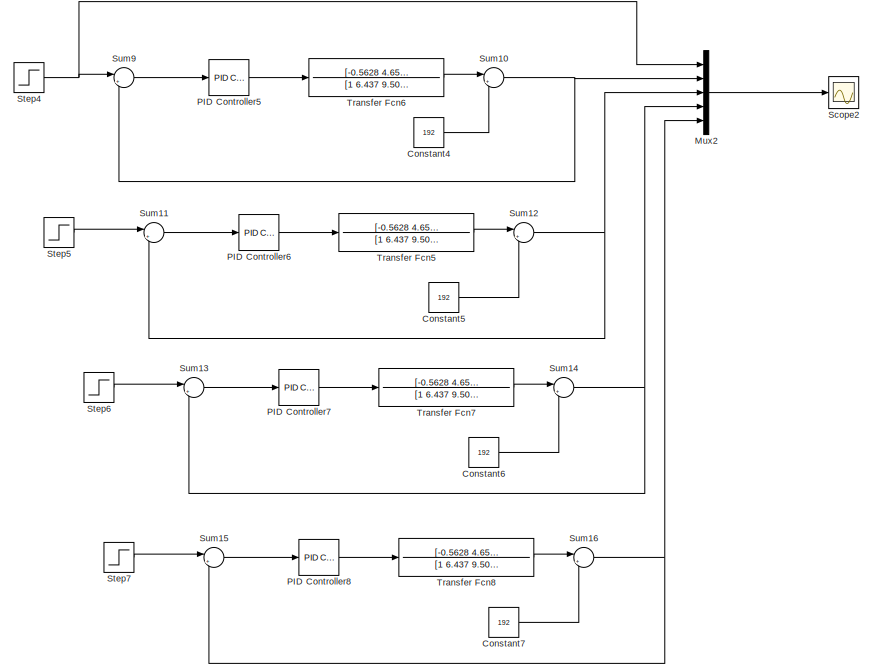
[diagram: root canvas - part 1/5, top center region]
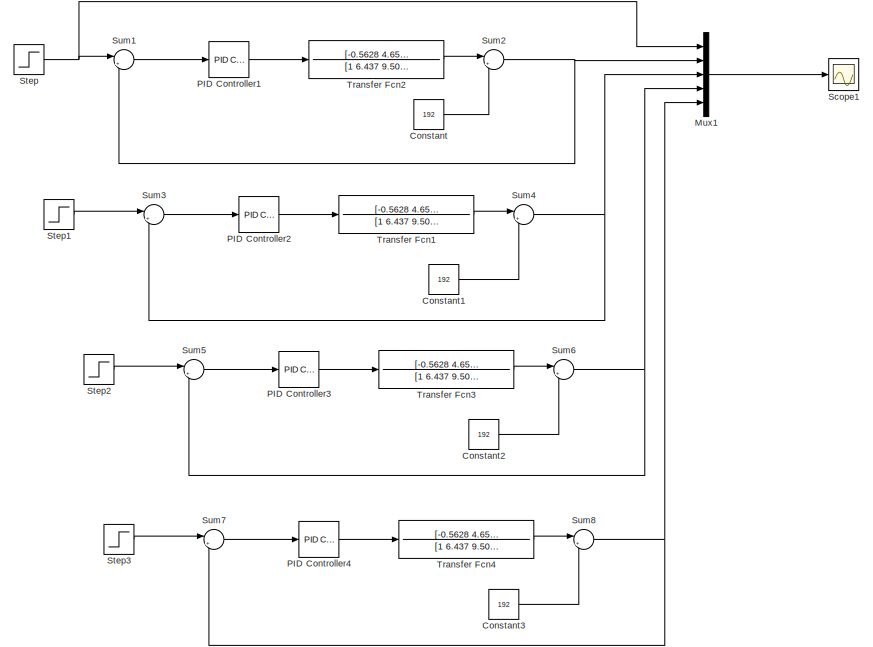
[diagram: root canvas - part 2/5, top left region]
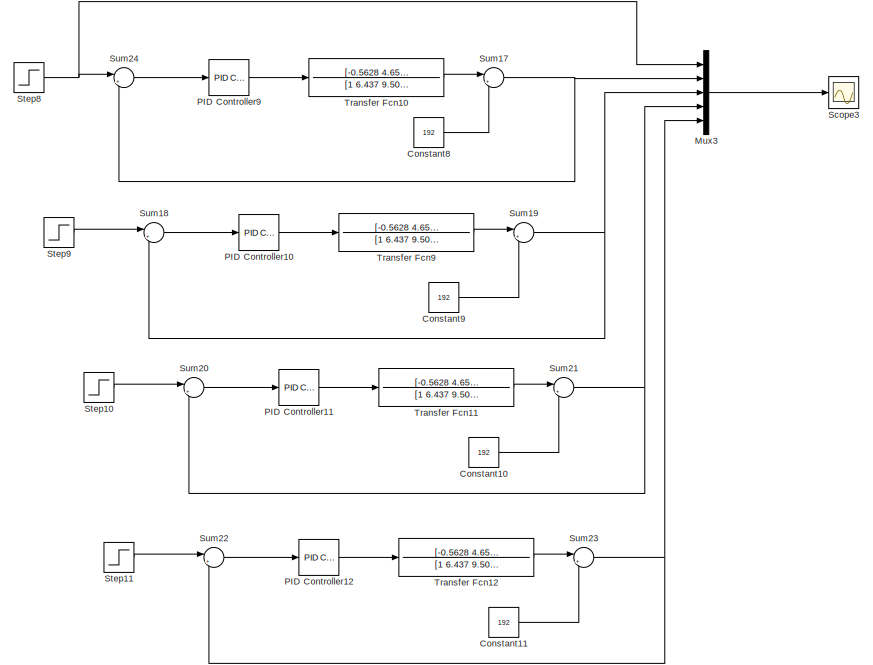
[diagram: root canvas - part 3/5, top right region]
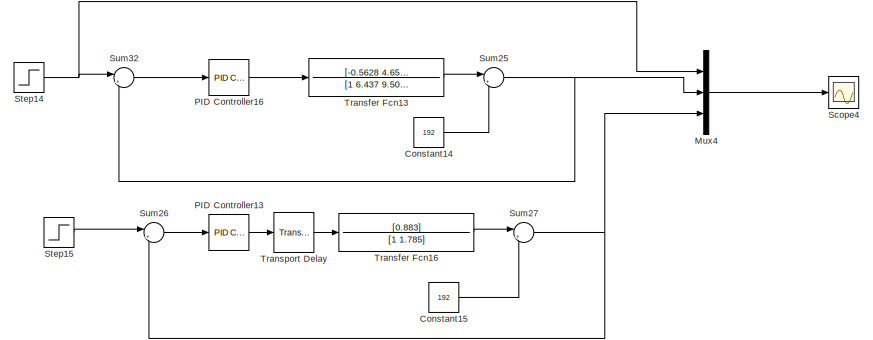
[diagram: root canvas - part 4/5, middle left region]
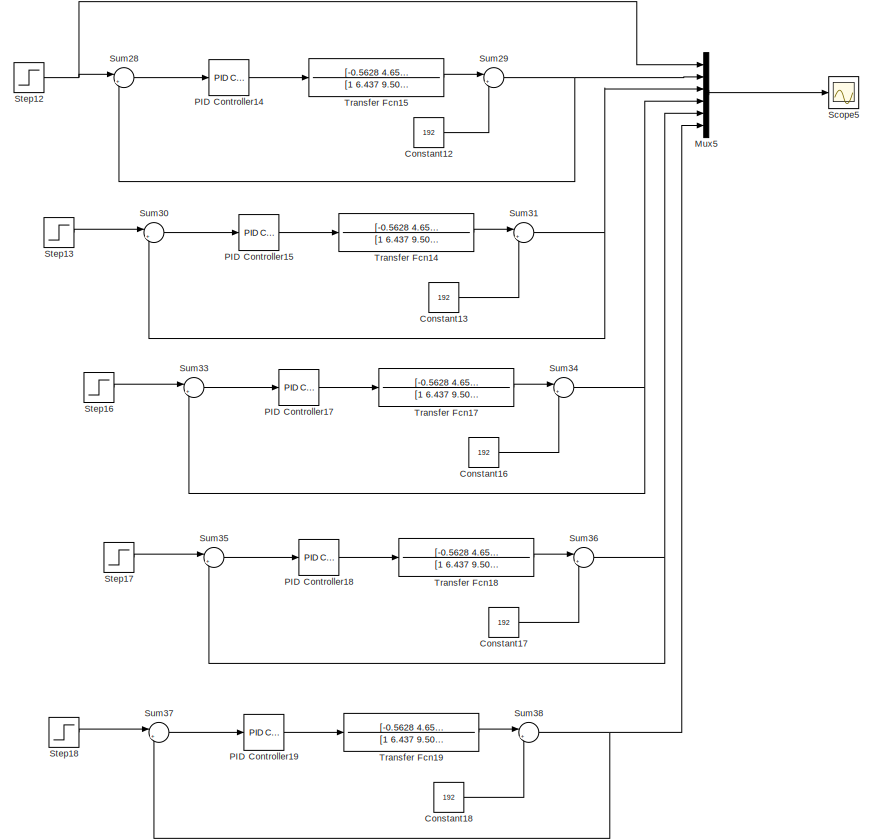
[diagram: root canvas - part 5/5, bottom center region]
MODEL slx_c8a90089624b
KIND model
CONFIG AbsTol = auto
CONFIG EnableMultiTasking = off
CONFIG FixedStep = auto
CONFIG MaxStep = auto
CONFIG MinStep = auto
CONFIG RelTol = 1e-3
CONFIG SampleTimeConstraint = Unconstrained
CONFIG Solver = VariableStepAuto
CONFIG SolverName = VariableStepAuto
CONFIG StartTime = 0.0
CONFIG StopTime = 10.0
BLOCK [Constant] Constant
  Value = 192
BLOCK [Constant] Constant1
  Value = 192
BLOCK [Constant] Constant10
  Value = 192
BLOCK [Constant] Constant11
  Value = 192
BLOCK [Constant] Constant12
  Value = 192
BLOCK [Constant] Constant13
  Value = 192
BLOCK [Constant] Constant14
  Value = 192
BLOCK [Constant] Constant15
  Value = 192
BLOCK [Constant] Constant16
  Value = 192
BLOCK [Constant] Constant17
  Value = 192
BLOCK [Constant] Constant18
  Value = 192
BLOCK [Constant] Constant2
  Value = 192
BLOCK [Constant] Constant3
  Value = 192
BLOCK [Constant] Constant4
  Value = 192
BLOCK [Constant] Constant5
  Value = 192
BLOCK [Constant] Constant6
  Value = 192
BLOCK [Constant] Constant7
  Value = 192
BLOCK [Constant] Constant8
  Value = 192
BLOCK [Constant] Constant9
  Value = 192
BLOCK [Mux] Mux1
  DisplayOption = bar
  Inputs = 5
  Ports = [5, 1]
BLOCK [Mux] Mux2
  DisplayOption = bar
  Inputs = 5
  Ports = [5, 1]
BLOCK [Mux] Mux3
  DisplayOption = bar
  Inputs = 5
  Ports = [5, 1]
BLOCK [Mux] Mux4
  DisplayOption = bar
  Inputs = 3
  Ports = [3, 1]
BLOCK [Mux] Mux5
  DisplayOption = bar
  Inputs = 6
  Ports = [6, 1]
BLOCK [Reference] PID Controller1  REF=simulink/Continuous/PID Controller
  Ports = [1, 1]
  SourceBlock = simulink/Continuous/PID Controller
  SourceProductBaseCode = SL
  SourceProductName = Simulink
  SourceType = PID 1dof
BLOCK [Reference] PID Controller10  REF=simulink/Continuous/PID Controller
  Ports = [1, 1]
  SourceBlock = simulink/Continuous/PID Controller
  SourceProductBaseCode = SL
  SourceProductName = Simulink
  SourceType = PID 1dof
BLOCK [Reference] PID Controller11  REF=simulink/Continuous/PID Controller
  Ports = [1, 1]
  SourceBlock = simulink/Continuous/PID Controller
  SourceProductBaseCode = SL
  SourceProductName = Simulink
  SourceType = PID 1dof
BLOCK [Reference] PID Controller12  REF=simulink/Continuous/PID Controller
  Ports = [1, 1]
  SourceBlock = simulink/Continuous/PID Controller
  SourceProductBaseCode = SL
  SourceProductName = Simulink
  SourceType = PID 1dof
BLOCK [Reference] PID Controller13  REF=simulink/Continuous/PID Controller
  Ports = [1, 1]
  SourceBlock = simulink/Continuous/PID Controller
  SourceProductBaseCode = SL
  SourceProductName = Simulink
  SourceType = PID 1dof
BLOCK [Reference] PID Controller14  REF=simulink/Continuous/PID Controller
  Ports = [1, 1]
  SourceBlock = simulink/Continuous/PID Controller
  SourceProductBaseCode = SL
  SourceProductName = Simulink
  SourceType = PID 1dof
BLOCK [Reference] PID Controller15  REF=simulink/Continuous/PID Controller
  Ports = [1, 1]
  SourceBlock = simulink/Continuous/PID Controller
  SourceProductBaseCode = SL
  SourceProductName = Simulink
  SourceType = PID 1dof
BLOCK [Reference] PID Controller16  REF=simulink/Continuous/PID Controller
  Ports = [1, 1]
  SourceBlock = simulink/Continuous/PID Controller
  SourceProductBaseCode = SL
  SourceProductName = Simulink
  SourceType = PID 1dof
BLOCK [Reference] PID Controller17  REF=simulink/Continuous/PID Controller
  Ports = [1, 1]
  SourceBlock = simulink/Continuous/PID Controller
  SourceProductBaseCode = SL
  SourceProductName = Simulink
  SourceType = PID 1dof
BLOCK [Reference] PID Controller18  REF=simulink/Continuous/PID Controller
  Ports = [1, 1]
  SourceBlock = simulink/Continuous/PID Controller
  SourceProductBaseCode = SL
  SourceProductName = Simulink
  SourceType = PID 1dof
BLOCK [Reference] PID Controller19  REF=simulink/Continuous/PID Controller
  Ports = [1, 1]
  SourceBlock = simulink/Continuous/PID Controller
  SourceProductBaseCode = SL
  SourceProductName = Simulink
  SourceType = PID 1dof
BLOCK [Reference] PID Controller2  REF=simulink/Continuous/PID Controller
  Ports = [1, 1]
  SourceBlock = simulink/Continuous/PID Controller
  SourceProductBaseCode = SL
  SourceProductName = Simulink
  SourceType = PID 1dof
BLOCK [Reference] PID Controller3  REF=simulink/Continuous/PID Controller
  Ports = [1, 1]
  SourceBlock = simulink/Continuous/PID Controller
  SourceProductBaseCode = SL
  SourceProductName = Simulink
  SourceType = PID 1dof
BLOCK [Reference] PID Controller4  REF=simulink/Continuous/PID Controller
  Ports = [1, 1]
  SourceBlock = simulink/Continuous/PID Controller
  SourceProductBaseCode = SL
  SourceProductName = Simulink
  SourceType = PID 1dof
BLOCK [Reference] PID Controller5  REF=simulink/Continuous/PID Controller
  Ports = [1, 1]
  SourceBlock = simulink/Continuous/PID Controller
  SourceProductBaseCode = SL
  SourceProductName = Simulink
  SourceType = PID 1dof
BLOCK [Reference] PID Controller6  REF=simulink/Continuous/PID Controller
  Ports = [1, 1]
  SourceBlock = simulink/Continuous/PID Controller
  SourceProductBaseCode = SL
  SourceProductName = Simulink
  SourceType = PID 1dof
BLOCK [Reference] PID Controller7  REF=simulink/Continuous/PID Controller
  Ports = [1, 1]
  SourceBlock = simulink/Continuous/PID Controller
  SourceProductBaseCode = SL
  SourceProductName = Simulink
  SourceType = PID 1dof
BLOCK [Reference] PID Controller8  REF=simulink/Continuous/PID Controller
  Ports = [1, 1]
  SourceBlock = simulink/Continuous/PID Controller
  SourceProductBaseCode = SL
  SourceProductName = Simulink
  SourceType = PID 1dof
BLOCK [Reference] PID Controller9  REF=simulink/Continuous/PID Controller
  Ports = [1, 1]
  SourceBlock = simulink/Continuous/PID Controller
  SourceProductBaseCode = SL
  SourceProductName = Simulink
  SourceType = PID 1dof
BLOCK [Scope] Scope1
  Floating = off
  NumInputPorts = 1
  Ports = [1]
  ScopeSpecificationString = Simulink.scopes.TimeScopeBlockCfg('CurrentConfiguration', extmgr.ConfigurationSet(extmgr.Configuration('Core','General UI',true),extmgr.Configuration('Core','Source UI',true),extmgr.Configuration('Sources','WiredSimulink',true,'DataLoggingVariableName','ScopeData1'),extmgr.Configuration('Visuals','Time Domain',true,'SerializedDisplays',{struct('MinYLimReal','181.96439','MaxYLimReal','233.81463','Y...<+1405ch>
BLOCK [Scope] Scope2
  Floating = off
  NumInputPorts = 1
  Ports = [1]
  ScopeSpecificationString = Simulink.scopes.TimeScopeBlockCfg('CurrentConfiguration', extmgr.ConfigurationSet(extmgr.Configuration('Core','General UI',true),extmgr.Configuration('Core','Source UI',true),extmgr.Configuration('Sources','WiredSimulink',true),extmgr.Configuration('Visuals','Time Domain',true,'SerializedDisplays',{struct('MinYLimReal','184.50574','MaxYLimReal','239.39338','YLabelReal','','MinYLimMag','184.50574',...<+1399ch>
BLOCK [Scope] Scope3
  Floating = off
  NumInputPorts = 1
  Ports = [1]
  ScopeSpecificationString = Simulink.scopes.TimeScopeBlockCfg('CurrentConfiguration', extmgr.ConfigurationSet(extmgr.Configuration('Core','General UI',true),extmgr.Configuration('Core','Source UI',true),extmgr.Configuration('Sources','WiredSimulink',true,'DataLoggingVariableName','ScopeData2'),extmgr.Configuration('Visuals','Time Domain',true,'SerializedDisplays',{struct('MinYLimReal','163.36665','MaxYLimReal','231.32104','Y...<+1439ch>
BLOCK [Scope] Scope4
  Floating = off
  NumInputPorts = 1
  Ports = [1]
  ScopeSpecificationString = Simulink.scopes.TimeScopeBlockCfg('CurrentConfiguration', extmgr.ConfigurationSet(extmgr.Configuration('Core','General UI',true),extmgr.Configuration('Core','Source UI',true),extmgr.Configuration('Sources','WiredSimulink',true,'DataLoggingVariableName','ScopeData3'),extmgr.Configuration('Visuals','Time Domain',true,'SerializedDisplays',{struct('MinYLimReal','185.69792','MaxYLimReal','228.25801','Y...<+1424ch>
BLOCK [Scope] Scope5
  Floating = off
  NumInputPorts = 1
  Ports = [1]
  ScopeSpecificationString = Simulink.scopes.TimeScopeBlockCfg('CurrentConfiguration', extmgr.ConfigurationSet(extmgr.Configuration('Core','General UI',true),extmgr.Configuration('Core','Source UI',true),extmgr.Configuration('Sources','WiredSimulink',true,'DataLoggingVariableName','ScopeData1'),extmgr.Configuration('Visuals','Time Domain',true,'SerializedDisplays',{struct('MinYLimReal','180.44486','MaxYLimReal','237.97089','Y...<+1419ch>
BLOCK [Step] Step
  After = 224
  Before = 192
  SampleTime = 0
BLOCK [Step] Step1
  After = 224
  Before = 192
  SampleTime = 0
BLOCK [Step] Step10
  After = 224
  Before = 192
  SampleTime = 0
BLOCK [Step] Step11
  After = 224
  Before = 192
  SampleTime = 0
BLOCK [Step] Step12
  After = 224
  Before = 192
  SampleTime = 0
BLOCK [Step] Step13
  After = 224
  Before = 192
  SampleTime = 0
BLOCK [Step] Step14
  After = 224
  Before = 192
  SampleTime = 0
BLOCK [Step] Step15
  After = 224
  Before = 192
  SampleTime = 0
BLOCK [Step] Step16
  After = 224
  Before = 192
  SampleTime = 0
BLOCK [Step] Step17
  After = 224
  Before = 192
  SampleTime = 0
BLOCK [Step] Step18
  After = 224
  Before = 192
  SampleTime = 0
BLOCK [Step] Step2
  After = 224
  Before = 192
  SampleTime = 0
BLOCK [Step] Step3
  After = 224
  Before = 192
  SampleTime = 0
BLOCK [Step] Step4
  After = 224
  Before = 192
  SampleTime = 0
BLOCK [Step] Step5
  After = 224
  Before = 192
  SampleTime = 0
BLOCK [Step] Step6
  After = 224
  Before = 192
  SampleTime = 0
BLOCK [Step] Step7
  After = 224
  Before = 192
  SampleTime = 0
BLOCK [Step] Step8
  After = 224
  Before = 192
  SampleTime = 0
BLOCK [Step] Step9
  After = 224
  Before = 192
  SampleTime = 0
BLOCK [Sum] Sum1
  IconShape = round
  InputSameDT = off
  Inputs = |+-
  OutDataTypeStr = Inherit: Inherit via internal rule
  Ports = [2, 1]
  SaturateOnIntegerOverflow = off
BLOCK [Sum] Sum10
  IconShape = round
  InputSameDT = off
  Inputs = |++
  OutDataTypeStr = Inherit: Inherit via internal rule
  Ports = [2, 1]
  SaturateOnIntegerOverflow = off
BLOCK [Sum] Sum11
  IconShape = round
  InputSameDT = off
  Inputs = |+-
  OutDataTypeStr = Inherit: Inherit via internal rule
  Ports = [2, 1]
  SaturateOnIntegerOverflow = off
BLOCK [Sum] Sum12
  IconShape = round
  InputSameDT = off
  Inputs = |++
  OutDataTypeStr = Inherit: Inherit via internal rule
  Ports = [2, 1]
  SaturateOnIntegerOverflow = off
BLOCK [Sum] Sum13
  IconShape = round
  InputSameDT = off
  Inputs = |+-
  OutDataTypeStr = Inherit: Inherit via internal rule
  Ports = [2, 1]
  SaturateOnIntegerOverflow = off
BLOCK [Sum] Sum14
  IconShape = round
  InputSameDT = off
  Inputs = |++
  OutDataTypeStr = Inherit: Inherit via internal rule
  Ports = [2, 1]
  SaturateOnIntegerOverflow = off
BLOCK [Sum] Sum15
  IconShape = round
  InputSameDT = off
  Inputs = |+-
  OutDataTypeStr = Inherit: Inherit via internal rule
  Ports = [2, 1]
  SaturateOnIntegerOverflow = off
BLOCK [Sum] Sum16
  IconShape = round
  InputSameDT = off
  Inputs = |++
  OutDataTypeStr = Inherit: Inherit via internal rule
  Ports = [2, 1]
  SaturateOnIntegerOverflow = off
BLOCK [Sum] Sum17
  IconShape = round
  InputSameDT = off
  Inputs = |++
  OutDataTypeStr = Inherit: Inherit via internal rule
  Ports = [2, 1]
  SaturateOnIntegerOverflow = off
BLOCK [Sum] Sum18
  IconShape = round
  InputSameDT = off
  Inputs = |+-
  OutDataTypeStr = Inherit: Inherit via internal rule
  Ports = [2, 1]
  SaturateOnIntegerOverflow = off
BLOCK [Sum] Sum19
  IconShape = round
  InputSameDT = off
  Inputs = |++
  OutDataTypeStr = Inherit: Inherit via internal rule
  Ports = [2, 1]
  SaturateOnIntegerOverflow = off
BLOCK [Sum] Sum2
  IconShape = round
  InputSameDT = off
  Inputs = |++
  OutDataTypeStr = Inherit: Inherit via internal rule
  Ports = [2, 1]
  SaturateOnIntegerOverflow = off
BLOCK [Sum] Sum20
  IconShape = round
  InputSameDT = off
  Inputs = |+-
  OutDataTypeStr = Inherit: Inherit via internal rule
  Ports = [2, 1]
  SaturateOnIntegerOverflow = off
BLOCK [Sum] Sum21
  IconShape = round
  InputSameDT = off
  Inputs = |++
  OutDataTypeStr = Inherit: Inherit via internal rule
  Ports = [2, 1]
  SaturateOnIntegerOverflow = off
BLOCK [Sum] Sum22
  IconShape = round
  InputSameDT = off
  Inputs = |+-
  OutDataTypeStr = Inherit: Inherit via internal rule
  Ports = [2, 1]
  SaturateOnIntegerOverflow = off
BLOCK [Sum] Sum23
  IconShape = round
  InputSameDT = off
  Inputs = |++
  OutDataTypeStr = Inherit: Inherit via internal rule
  Ports = [2, 1]
  SaturateOnIntegerOverflow = off
BLOCK [Sum] Sum24
  IconShape = round
  InputSameDT = off
  Inputs = |+-
  OutDataTypeStr = Inherit: Inherit via internal rule
  Ports = [2, 1]
  SaturateOnIntegerOverflow = off
BLOCK [Sum] Sum25
  IconShape = round
  InputSameDT = off
  Inputs = |++
  OutDataTypeStr = Inherit: Inherit via internal rule
  Ports = [2, 1]
  SaturateOnIntegerOverflow = off
BLOCK [Sum] Sum26
  IconShape = round
  InputSameDT = off
  Inputs = |+-
  OutDataTypeStr = Inherit: Inherit via internal rule
  Ports = [2, 1]
  SaturateOnIntegerOverflow = off
BLOCK [Sum] Sum27
  IconShape = round
  InputSameDT = off
  Inputs = |++
  OutDataTypeStr = Inherit: Inherit via internal rule
  Ports = [2, 1]
  SaturateOnIntegerOverflow = off
BLOCK [Sum] Sum28
  IconShape = round
  InputSameDT = off
  Inputs = |+-
  OutDataTypeStr = Inherit: Inherit via internal rule
  Ports = [2, 1]
  SaturateOnIntegerOverflow = off
BLOCK [Sum] Sum29
  IconShape = round
  InputSameDT = off
  Inputs = |++
  OutDataTypeStr = Inherit: Inherit via internal rule
  Ports = [2, 1]
  SaturateOnIntegerOverflow = off
BLOCK [Sum] Sum3
  IconShape = round
  InputSameDT = off
  Inputs = |+-
  OutDataTypeStr = Inherit: Inherit via internal rule
  Ports = [2, 1]
  SaturateOnIntegerOverflow = off
BLOCK [Sum] Sum30
  IconShape = round
  InputSameDT = off
  Inputs = |+-
  OutDataTypeStr = Inherit: Inherit via internal rule
  Ports = [2, 1]
  SaturateOnIntegerOverflow = off
BLOCK [Sum] Sum31
  IconShape = round
  InputSameDT = off
  Inputs = |++
  OutDataTypeStr = Inherit: Inherit via internal rule
  Ports = [2, 1]
  SaturateOnIntegerOverflow = off
BLOCK [Sum] Sum32
  IconShape = round
  InputSameDT = off
  Inputs = |+-
  OutDataTypeStr = Inherit: Inherit via internal rule
  Ports = [2, 1]
  SaturateOnIntegerOverflow = off
BLOCK [Sum] Sum33
  IconShape = round
  InputSameDT = off
  Inputs = |+-
  OutDataTypeStr = Inherit: Inherit via internal rule
  Ports = [2, 1]
  SaturateOnIntegerOverflow = off
BLOCK [Sum] Sum34
  IconShape = round
  InputSameDT = off
  Inputs = |++
  OutDataTypeStr = Inherit: Inherit via internal rule
  Ports = [2, 1]
  SaturateOnIntegerOverflow = off
BLOCK [Sum] Sum35
  IconShape = round
  InputSameDT = off
  Inputs = |+-
  OutDataTypeStr = Inherit: Inherit via internal rule
  Ports = [2, 1]
  SaturateOnIntegerOverflow = off
BLOCK [Sum] Sum36
  IconShape = round
  InputSameDT = off
  Inputs = |++
  OutDataTypeStr = Inherit: Inherit via internal rule
  Ports = [2, 1]
  SaturateOnIntegerOverflow = off
BLOCK [Sum] Sum37
  IconShape = round
  InputSameDT = off
  Inputs = |+-
  OutDataTypeStr = Inherit: Inherit via internal rule
  Ports = [2, 1]
  SaturateOnIntegerOverflow = off
BLOCK [Sum] Sum38
  IconShape = round
  InputSameDT = off
  Inputs = |++
  OutDataTypeStr = Inherit: Inherit via internal rule
  Ports = [2, 1]
  SaturateOnIntegerOverflow = off
BLOCK [Sum] Sum4
  IconShape = round
  InputSameDT = off
  Inputs = |++
  OutDataTypeStr = Inherit: Inherit via internal rule
  Ports = [2, 1]
  SaturateOnIntegerOverflow = off
BLOCK [Sum] Sum5
  IconShape = round
  InputSameDT = off
  Inputs = |+-
  OutDataTypeStr = Inherit: Inherit via internal rule
  Ports = [2, 1]
  SaturateOnIntegerOverflow = off
BLOCK [Sum] Sum6
  IconShape = round
  InputSameDT = off
  Inputs = |++
  OutDataTypeStr = Inherit: Inherit via internal rule
  Ports = [2, 1]
  SaturateOnIntegerOverflow = off
BLOCK [Sum] Sum7
  IconShape = round
  InputSameDT = off
  Inputs = |+-
  OutDataTypeStr = Inherit: Inherit via internal rule
  Ports = [2, 1]
  SaturateOnIntegerOverflow = off
BLOCK [Sum] Sum8
  IconShape = round
  InputSameDT = off
  Inputs = |++
  OutDataTypeStr = Inherit: Inherit via internal rule
  Ports = [2, 1]
  SaturateOnIntegerOverflow = off
BLOCK [Sum] Sum9
  IconShape = round
  InputSameDT = off
  Inputs = |+-
  OutDataTypeStr = Inherit: Inherit via internal rule
  Ports = [2, 1]
  SaturateOnIntegerOverflow = off
BLOCK [TransferFcn] Transfer Fcn1
  Denominator = [1 6.437 9.504]
  Numerator = [-0.5628 4.652]
BLOCK [TransferFcn] Transfer Fcn10
  Denominator = [1 6.437 9.504]
  Numerator = [-0.5628 4.652]
BLOCK [TransferFcn] Transfer Fcn11
  Denominator = [1 6.437 9.504]
  Numerator = [-0.5628 4.652]
BLOCK [TransferFcn] Transfer Fcn12
  Denominator = [1 6.437 9.504]
  Numerator = [-0.5628 4.652]
BLOCK [TransferFcn] Transfer Fcn13
  Denominator = [1 6.437 9.504]
  Numerator = [-0.5628 4.652]
BLOCK [TransferFcn] Transfer Fcn14
  Denominator = [1 6.437 9.504]
  Numerator = [-0.5628 4.652]
BLOCK [TransferFcn] Transfer Fcn15
  Denominator = [1 6.437 9.504]
  Numerator = [-0.5628 4.652]
BLOCK [TransferFcn] Transfer Fcn16
  Denominator = [1 1.785]
  Numerator = [0.883]
BLOCK [TransferFcn] Transfer Fcn17
  Denominator = [1 6.437 9.504]
  Numerator = [-0.5628 4.652]
BLOCK [TransferFcn] Transfer Fcn18
  Denominator = [1 6.437 9.504]
  Numerator = [-0.5628 4.652]
BLOCK [TransferFcn] Transfer Fcn19
  Denominator = [1 6.437 9.504]
  Numerator = [-0.5628 4.652]
BLOCK [TransferFcn] Transfer Fcn2
  Denominator = [1 6.437 9.504]
  Numerator = [-0.5628 4.652]
BLOCK [TransferFcn] Transfer Fcn3
  Denominator = [1 6.437 9.504]
  Numerator = [-0.5628 4.652]
BLOCK [TransferFcn] Transfer Fcn4
  Denominator = [1 6.437 9.504]
  Numerator = [-0.5628 4.652]
BLOCK [TransferFcn] Transfer Fcn5
  Denominator = [1 6.437 9.504]
  Numerator = [-0.5628 4.652]
BLOCK [TransferFcn] Transfer Fcn6
  Denominator = [1 6.437 9.504]
  Numerator = [-0.5628 4.652]
BLOCK [TransferFcn] Transfer Fcn7
  Denominator = [1 6.437 9.504]
  Numerator = [-0.5628 4.652]
BLOCK [TransferFcn] Transfer Fcn8
  Denominator = [1 6.437 9.504]
  Numerator = [-0.5628 4.652]
BLOCK [TransferFcn] Transfer Fcn9
  Denominator = [1 6.437 9.504]
  Numerator = [-0.5628 4.652]
BLOCK [TransportDelay] Transport Delay
  DelayTime = 0.253
  Ports = [1, 1]
LINE Constant10:1 -> Sum21:2
LINE Constant11:1 -> Sum23:2
LINE Constant12:1 -> Sum29:2
LINE Constant13:1 -> Sum31:2
LINE Constant14:1 -> Sum25:2
LINE Constant15:1 -> Sum27:2
LINE Constant16:1 -> Sum34:2
LINE Constant17:1 -> Sum36:2
LINE Constant18:1 -> Sum38:2
LINE Constant1:1 -> Sum4:2
LINE Constant2:1 -> Sum6:2
LINE Constant3:1 -> Sum8:2
LINE Constant4:1 -> Sum10:2
LINE Constant5:1 -> Sum12:2
LINE Constant6:1 -> Sum14:2
LINE Constant7:1 -> Sum16:2
LINE Constant8:1 -> Sum17:2
LINE Constant9:1 -> Sum19:2
LINE Constant:1 -> Sum2:2
LINE Mux1:1 -> Scope1:1
LINE Mux2:1 -> Scope2:1
LINE Mux3:1 -> Scope3:1
LINE Mux4:1 -> Scope4:1
LINE Mux5:1 -> Scope5:1
LINE PID Controller10:1 -> Transfer Fcn9:1
LINE PID Controller11:1 -> Transfer Fcn11:1
LINE PID Controller12:1 -> Transfer Fcn12:1
LINE PID Controller13:1 -> Transport Delay:1
LINE PID Controller14:1 -> Transfer Fcn15:1
LINE PID Controller15:1 -> Transfer Fcn14:1
LINE PID Controller16:1 -> Transfer Fcn13:1
LINE PID Controller17:1 -> Transfer Fcn17:1
LINE PID Controller18:1 -> Transfer Fcn18:1
LINE PID Controller19:1 -> Transfer Fcn19:1
LINE PID Controller1:1 -> Transfer Fcn2:1
LINE PID Controller2:1 -> Transfer Fcn1:1
LINE PID Controller3:1 -> Transfer Fcn3:1
LINE PID Controller4:1 -> Transfer Fcn4:1
LINE PID Controller5:1 -> Transfer Fcn6:1
LINE PID Controller6:1 -> Transfer Fcn5:1
LINE PID Controller7:1 -> Transfer Fcn7:1
LINE PID Controller8:1 -> Transfer Fcn8:1
LINE PID Controller9:1 -> Transfer Fcn10:1
LINE Step10:1 -> Sum20:1
LINE Step11:1 -> Sum22:1
NET Step12:1 -> Mux5:1, Sum28:1
LINE Step13:1 -> Sum30:1
NET Step14:1 -> Mux4:1, Sum32:1
LINE Step15:1 -> Sum26:1
LINE Step16:1 -> Sum33:1
LINE Step17:1 -> Sum35:1
LINE Step18:1 -> Sum37:1
LINE Step1:1 -> Sum3:1
LINE Step2:1 -> Sum5:1
LINE Step3:1 -> Sum7:1
NET Step4:1 -> Mux2:1, Sum9:1
LINE Step5:1 -> Sum11:1
LINE Step6:1 -> Sum13:1
LINE Step7:1 -> Sum15:1
NET Step8:1 -> Mux3:1, Sum24:1
LINE Step9:1 -> Sum18:1
NET Step:1 -> Mux1:1, Sum1:1
NET Sum10:1 -> Mux2:2, Sum9:2
LINE Sum11:1 -> PID Controller6:1
NET Sum12:1 -> Mux2:3, Sum11:2
LINE Sum13:1 -> PID Controller7:1
NET Sum14:1 -> Mux2:4, Sum13:2
LINE Sum15:1 -> PID Controller8:1
NET Sum16:1 -> Mux2:5, Sum15:2
NET Sum17:1 -> Mux3:2, Sum24:2
LINE Sum18:1 -> PID Controller10:1
NET Sum19:1 -> Mux3:3, Sum18:2
LINE Sum1:1 -> PID Controller1:1
LINE Sum20:1 -> PID Controller11:1
NET Sum21:1 -> Mux3:4, Sum20:2
LINE Sum22:1 -> PID Controller12:1
NET Sum23:1 -> Mux3:5, Sum22:2
LINE Sum24:1 -> PID Controller9:1
NET Sum25:1 -> Mux4:2, Sum32:2
LINE Sum26:1 -> PID Controller13:1
NET Sum27:1 -> Mux4:3, Sum26:2
LINE Sum28:1 -> PID Controller14:1
NET Sum29:1 -> Mux5:2, Sum28:2
NET Sum2:1 -> Mux1:2, Sum1:2
LINE Sum30:1 -> PID Controller15:1
NET Sum31:1 -> Mux5:3, Sum30:2
LINE Sum32:1 -> PID Controller16:1
LINE Sum33:1 -> PID Controller17:1
NET Sum34:1 -> Mux5:4, Sum33:2
LINE Sum35:1 -> PID Controller18:1
NET Sum36:1 -> Mux5:5, Sum35:2
LINE Sum37:1 -> PID Controller19:1
NET Sum38:1 -> Mux5:6, Sum37:2
LINE Sum3:1 -> PID Controller2:1
NET Sum4:1 -> Mux1:3, Sum3:2
LINE Sum5:1 -> PID Controller3:1
NET Sum6:1 -> Mux1:4, Sum5:2
LINE Sum7:1 -> PID Controller4:1
NET Sum8:1 -> Mux1:5, Sum7:2
LINE Sum9:1 -> PID Controller5:1
LINE Transfer Fcn10:1 -> Sum17:1
LINE Transfer Fcn11:1 -> Sum21:1
LINE Transfer Fcn12:1 -> Sum23:1
LINE Transfer Fcn13:1 -> Sum25:1
LINE Transfer Fcn14:1 -> Sum31:1
LINE Transfer Fcn15:1 -> Sum29:1
LINE Transfer Fcn16:1 -> Sum27:1
LINE Transfer Fcn17:1 -> Sum34:1
LINE Transfer Fcn18:1 -> Sum36:1
LINE Transfer Fcn19:1 -> Sum38:1
LINE Transfer Fcn1:1 -> Sum4:1
LINE Transfer Fcn2:1 -> Sum2:1
LINE Transfer Fcn3:1 -> Sum6:1
LINE Transfer Fcn4:1 -> Sum8:1
LINE Transfer Fcn5:1 -> Sum12:1
LINE Transfer Fcn6:1 -> Sum10:1
LINE Transfer Fcn7:1 -> Sum14:1
LINE Transfer Fcn8:1 -> Sum16:1
LINE Transfer Fcn9:1 -> Sum19:1
LINE Transport Delay:1 -> Transfer Fcn16:1
note: NET lines group one-source signal fan-out (src -> all destinations, sorted); 1:1 wires keep LINE
